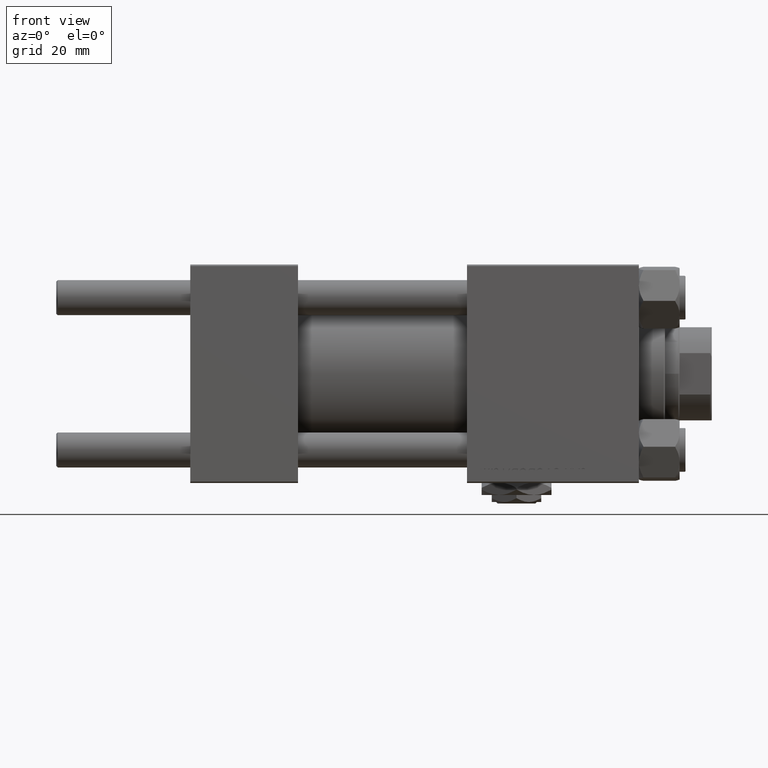
[diagram: clean part render]
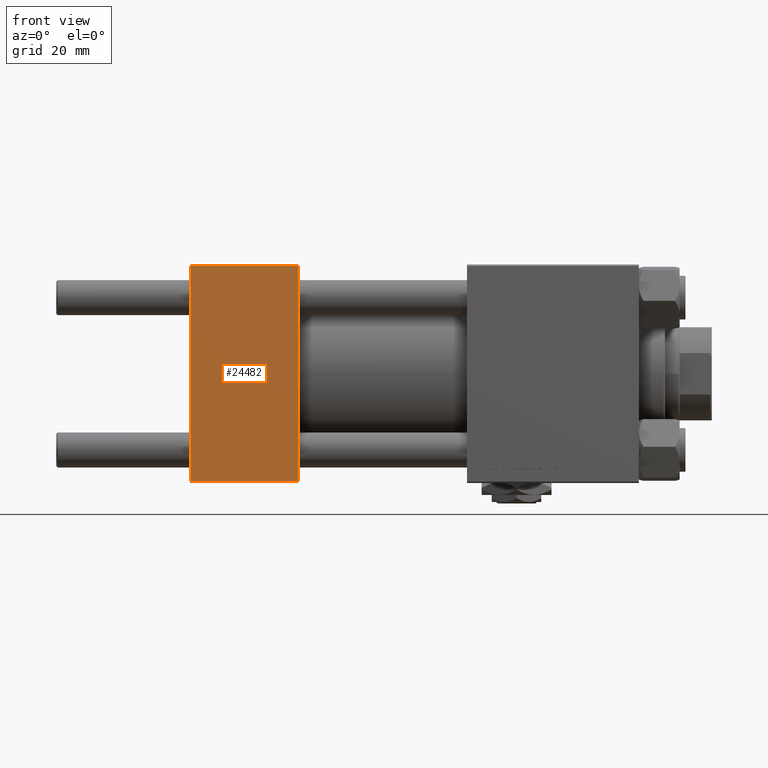
[diagram: same view with one face highlighted and labeled with its STEP entity id]
A machine part, front view. The second image highlights one B-rep face of the part: STEP entity #24482.
In plain terms, the highlighted planar face has unit normal (0, 1, 0).
Its self-contained STEP definition (entity closure, byte-faithful):
#823 = CARTESIAN_POINT ( 'NONE',  ( 37.00000000000000000, -37.50000000000000711, 37.49999999999999289 ) ) ;
#3771 = CARTESIAN_POINT ( 'NONE',  ( 37.00000000000000000, -37.50000000000000000, -37.00000000000003553 ) ) ;
#4912 = VECTOR ( 'NONE', #37482, 1000.000000000000000 ) ;
#6106 = LINE ( 'NONE', #32775, #40575 ) ;
#6954 = EDGE_CURVE ( 'NONE', #9909, #7918, #16345, .T. ) ;
#7489 = ORIENTED_EDGE ( 'NONE', *, *, #30980, .T. ) ;
#7918 = VERTEX_POINT ( 'NONE', #3771 ) ;
#9017 = DIRECTION ( 'NONE',  ( 0.000000000000000000, 9.251858538542971581E-17, -1.000000000000000000 ) ) ;
#9909 = VERTEX_POINT ( 'NONE', #24805 ) ;
#12611 = VECTOR ( 'NONE', #9017, 1000.000000000000000 ) ;
#14166 = VERTEX_POINT ( 'NONE', #50346 ) ;
#14487 = LINE ( 'NONE', #46355, #4912 ) ;
#16345 = LINE ( 'NONE', #28893, #12611 ) ;
#16751 = DIRECTION ( 'NONE',  ( 0.000000000000000000, -9.251858538542971581E-17, 1.000000000000000000 ) ) ;
#18892 = LINE ( 'NONE', #19666, #24710 ) ;
#19666 = CARTESIAN_POINT ( 'NONE',  ( 37.00000000000000000, -37.50000000000000711, 36.99999999999999289 ) ) ;
#24215 = EDGE_CURVE ( 'NONE', #50068, #7918, #6106, .T. ) ;
#24347 = EDGE_CURVE ( 'NONE', #9909, #14166, #18892, .T. ) ;
#24482 = ADVANCED_FACE ( 'NONE', ( #36617 ), #40787, .F. ) ;
#24710 = VECTOR ( 'NONE', #32455, 1000.000000000000000 ) ;
#24805 = CARTESIAN_POINT ( 'NONE',  ( 37.00000000000000000, -37.50000000000000711, 36.99999999999999289 ) ) ;
#28336 = ORIENTED_EDGE ( 'NONE', *, *, #24215, .T. ) ;
#28893 = CARTESIAN_POINT ( 'NONE',  ( 37.00000000000000000, -37.50000000000000711, 37.49999999999999289 ) ) ;
#30980 = EDGE_CURVE ( 'NONE', #14166, #50068, #14487, .T. ) ;
#32455 = DIRECTION ( 'NONE',  ( -1.000000000000000000, 0.000000000000000000, 0.000000000000000000 ) ) ;
#32775 = CARTESIAN_POINT ( 'NONE',  ( 37.00000000000000000, -37.50000000000000000, -37.00000000000003553 ) ) ;
#33292 = DIRECTION ( 'NONE',  ( 1.000000000000000000, 0.000000000000000000, 0.000000000000000000 ) ) ;
#36435 = EDGE_LOOP ( 'NONE', ( #7489, #28336, #41065, #36628 ) ) ;
#36617 = FACE_OUTER_BOUND ( 'NONE', #36435, .T. ) ;
#36628 = ORIENTED_EDGE ( 'NONE', *, *, #24347, .T. ) ;
#37482 = DIRECTION ( 'NONE',  ( 0.000000000000000000, 9.251858538542971581E-17, -1.000000000000000000 ) ) ;
#38084 = AXIS2_PLACEMENT_3D ( 'NONE', #823, #40539, #16751 ) ;
#40539 = DIRECTION ( 'NONE',  ( -0.000000000000000000, 1.000000000000000000, 9.251858538542971581E-17 ) ) ;
#40575 = VECTOR ( 'NONE', #33292, 1000.000000000000000 ) ;
#40787 = PLANE ( 'NONE',  #38084 ) ;
#41065 = ORIENTED_EDGE ( 'NONE', *, *, #6954, .F. ) ;
#46355 = CARTESIAN_POINT ( 'NONE',  ( 0.000000000000000000, -37.50000000000000711, 37.49999999999999289 ) ) ;
#48736 = CARTESIAN_POINT ( 'NONE',  ( 0.000000000000000000, -37.50000000000000000, -37.00000000000003553 ) ) ;
#50068 = VERTEX_POINT ( 'NONE', #48736 ) ;
#50346 = CARTESIAN_POINT ( 'NONE',  ( 0.000000000000000000, -37.50000000000000711, 36.99999999999999289 ) ) ;